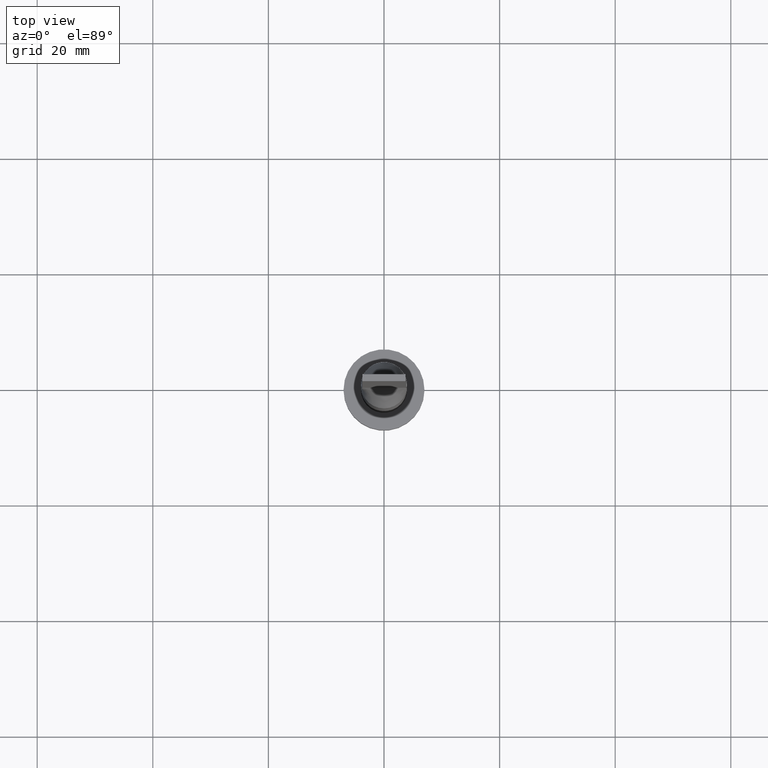
[diagram: clean part render]
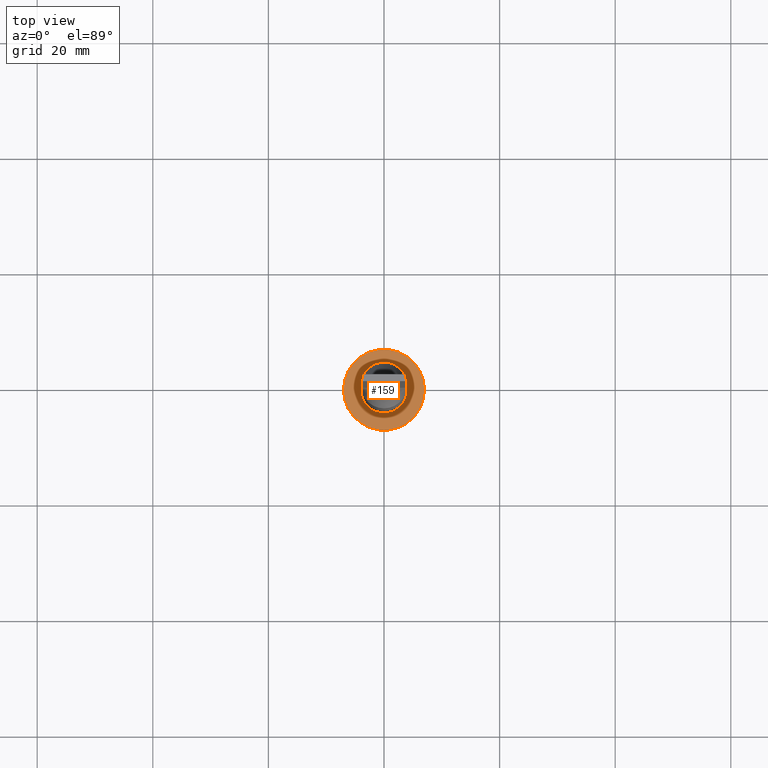
[diagram: same view with one face highlighted and labeled with its STEP entity id]
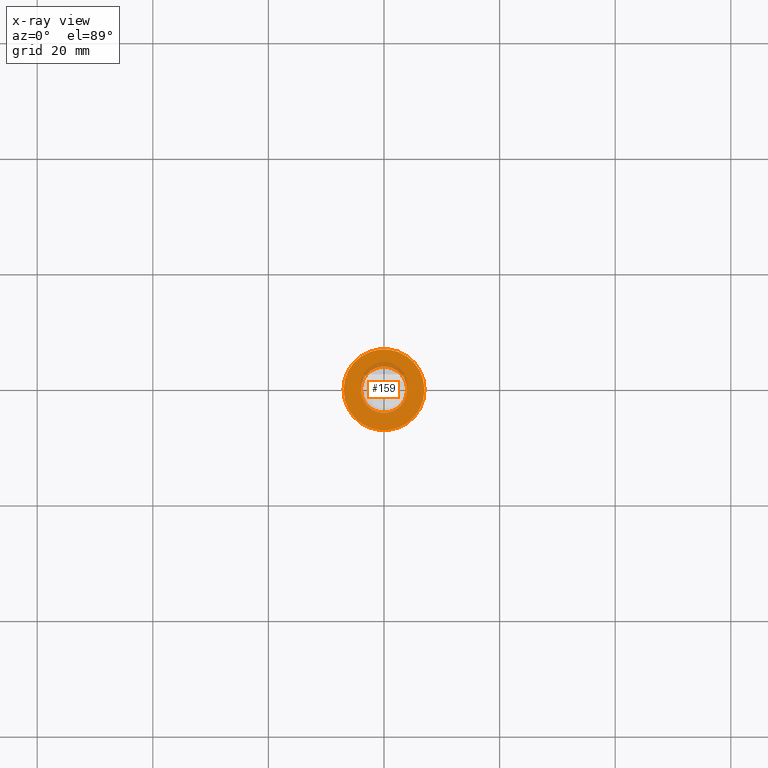
[diagram: x-ray of the same camera — body ghosted, the highlighted face saturated]
A machine part, top view. The second image highlights one B-rep face of the part: STEP entity #159.
The next image is the same camera in x-ray: the body ghosted, the highlighted face saturated — about 6% of this face is hidden behind the body in this view.
In plain terms, the highlighted planar face has unit normal (0, 0, 1).
Its self-contained STEP definition (entity closure, byte-faithful):
#8 = EDGE_LOOP ( 'NONE', ( #581, #68 ) ) ;
#15 = AXIS2_PLACEMENT_3D ( 'NONE', #472, #385, #81 ) ;
#23 = FACE_OUTER_BOUND ( 'NONE', #297, .T. ) ;
#37 = AXIS2_PLACEMENT_3D ( 'NONE', #353, #452, #174 ) ;
#40 = VERTEX_POINT ( 'NONE', #316 ) ;
#54 = EDGE_CURVE ( 'NONE', #40, #383, #394, .T. ) ;
#58 = CARTESIAN_POINT ( 'NONE',  ( 0.000000000000000000, 0.000000000000000000, 5.000000000000000000 ) ) ;
#68 = ORIENTED_EDGE ( 'NONE', *, *, #280, .F. ) ;
#81 = DIRECTION ( 'NONE',  ( 1.000000000000000000, 0.000000000000000000, 0.000000000000000000 ) ) ;
#130 = CARTESIAN_POINT ( 'NONE',  ( 0.000000000000000000, 0.000000000000000000, 5.000000000000000000 ) ) ;
#159 = ADVANCED_FACE ( 'NONE', ( #368, #23 ), #463, .T. ) ;
#164 = CARTESIAN_POINT ( 'NONE',  ( 0.000000000000000000, 0.000000000000000000, 5.000000000000000000 ) ) ;
#170 = DIRECTION ( 'NONE',  ( 1.000000000000000000, 0.000000000000000000, 0.000000000000000000 ) ) ;
#174 = DIRECTION ( 'NONE',  ( 1.000000000000000000, 0.000000000000000000, 0.000000000000000000 ) ) ;
#190 = VERTEX_POINT ( 'NONE', #205 ) ;
#205 = CARTESIAN_POINT ( 'NONE',  ( 4.000000000000000000, 4.898587196589411843E-16, 5.000000000000000000 ) ) ;
#207 = ORIENTED_EDGE ( 'NONE', *, *, #54, .T. ) ;
#237 = DIRECTION ( 'NONE',  ( 1.000000000000000000, 0.000000000000000000, -0.000000000000000000 ) ) ;
#280 = EDGE_CURVE ( 'NONE', #190, #447, #310, .T. ) ;
#297 = EDGE_LOOP ( 'NONE', ( #207, #348 ) ) ;
#302 = AXIS2_PLACEMENT_3D ( 'NONE', #130, #395, #359 ) ;
#310 = CIRCLE ( 'NONE', #15, 4.000000000000000000 ) ;
#316 = CARTESIAN_POINT ( 'NONE',  ( -7.000000000000000000, 0.000000000000000000, 5.000000000000000000 ) ) ;
#321 = EDGE_CURVE ( 'NONE', #383, #40, #357, .T. ) ;
#348 = ORIENTED_EDGE ( 'NONE', *, *, #321, .T. ) ;
#353 = CARTESIAN_POINT ( 'NONE',  ( 0.000000000000000000, 0.000000000000000000, 5.000000000000000000 ) ) ;
#357 = CIRCLE ( 'NONE', #492, 7.000000000000000000 ) ;
#359 = DIRECTION ( 'NONE',  ( 1.000000000000000000, 0.000000000000000000, 0.000000000000000000 ) ) ;
#368 = FACE_BOUND ( 'NONE', #8, .T. ) ;
#383 = VERTEX_POINT ( 'NONE', #563 ) ;
#385 = DIRECTION ( 'NONE',  ( 0.000000000000000000, 0.000000000000000000, 1.000000000000000000 ) ) ;
#394 = CIRCLE ( 'NONE', #302, 7.000000000000000000 ) ;
#395 = DIRECTION ( 'NONE',  ( 0.000000000000000000, 0.000000000000000000, 1.000000000000000000 ) ) ;
#398 = CARTESIAN_POINT ( 'NONE',  ( -4.000000000000000000, 0.000000000000000000, 5.000000000000000000 ) ) ;
#447 = VERTEX_POINT ( 'NONE', #398 ) ;
#452 = DIRECTION ( 'NONE',  ( 0.000000000000000000, 0.000000000000000000, 1.000000000000000000 ) ) ;
#459 = CIRCLE ( 'NONE', #37, 4.000000000000000000 ) ;
#463 = PLANE ( 'NONE',  #549 ) ;
#472 = CARTESIAN_POINT ( 'NONE',  ( 0.000000000000000000, 0.000000000000000000, 5.000000000000000000 ) ) ;
#492 = AXIS2_PLACEMENT_3D ( 'NONE', #164, #516, #170 ) ;
#505 = EDGE_CURVE ( 'NONE', #447, #190, #459, .T. ) ;
#516 = DIRECTION ( 'NONE',  ( 0.000000000000000000, 0.000000000000000000, 1.000000000000000000 ) ) ;
#549 = AXIS2_PLACEMENT_3D ( 'NONE', #58, #551, #237 ) ;
#551 = DIRECTION ( 'NONE',  ( 0.000000000000000000, 0.000000000000000000, 1.000000000000000000 ) ) ;
#563 = CARTESIAN_POINT ( 'NONE',  ( 7.000000000000000000, 8.572527594031473190E-16, 5.000000000000000000 ) ) ;
#581 = ORIENTED_EDGE ( 'NONE', *, *, #505, .F. ) ;